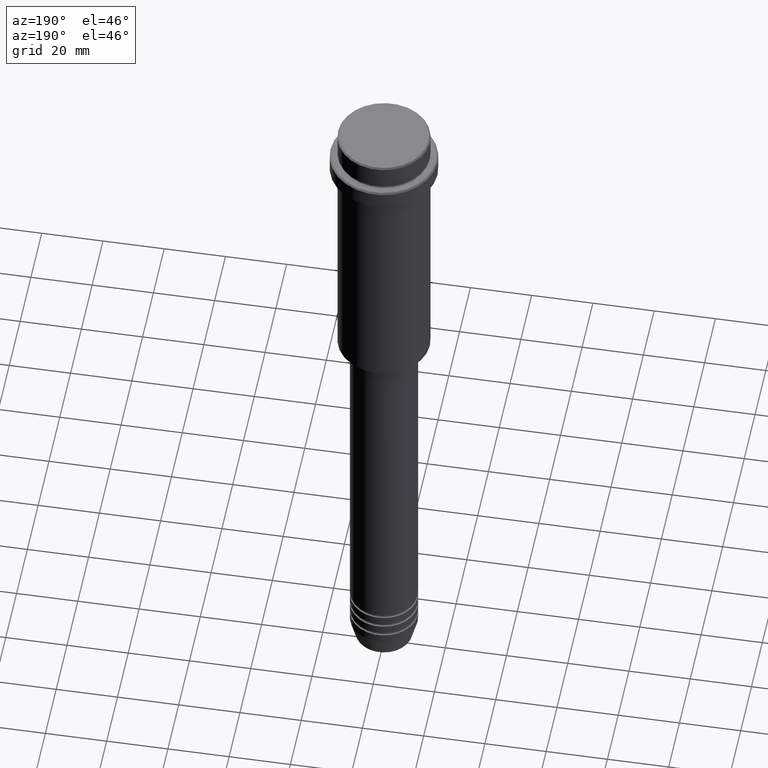
[diagram: clean part render]
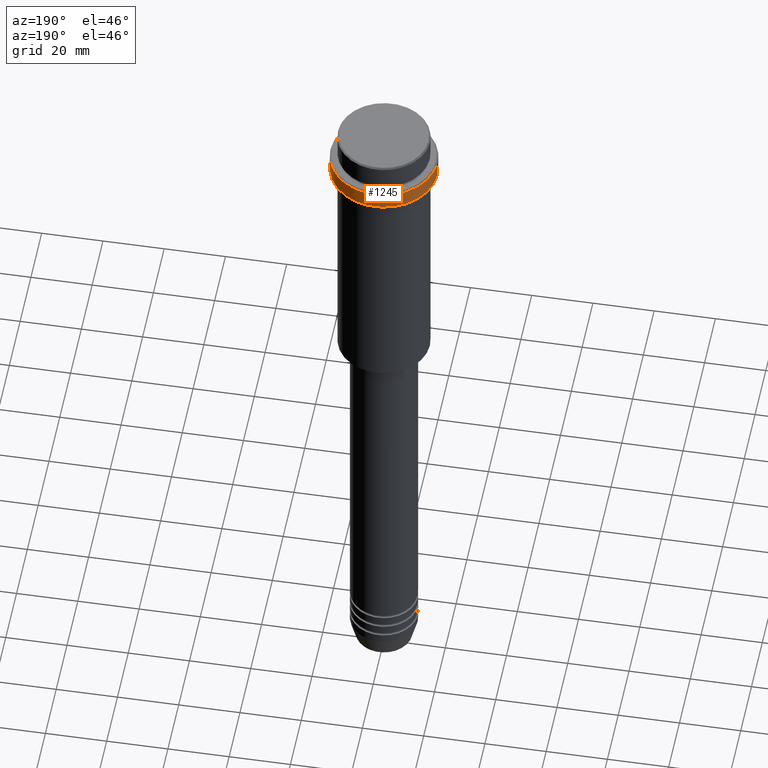
[diagram: same view with one face highlighted and labeled with its STEP entity id]
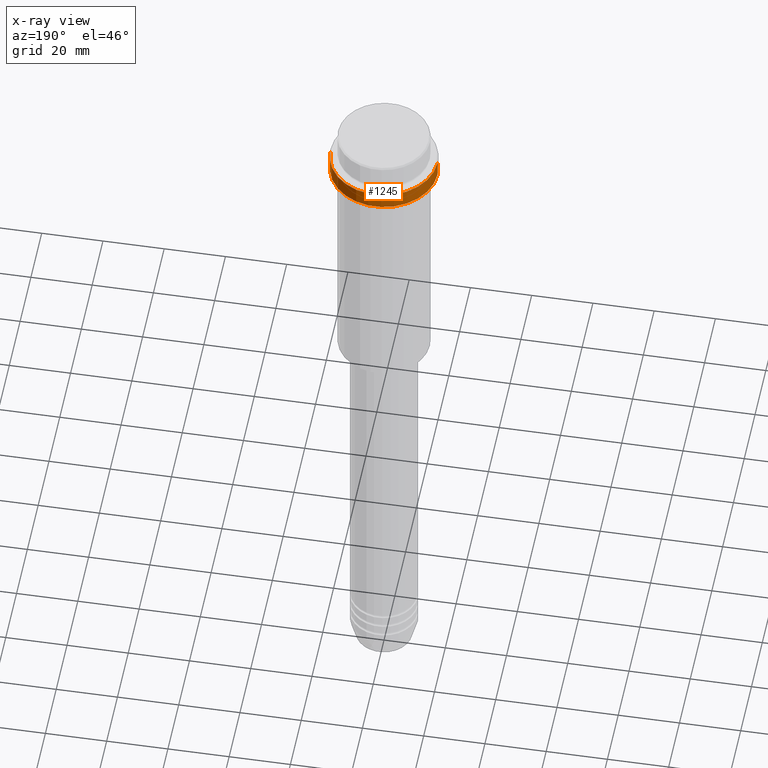
[diagram: x-ray of the same camera — body ghosted, the highlighted face saturated]
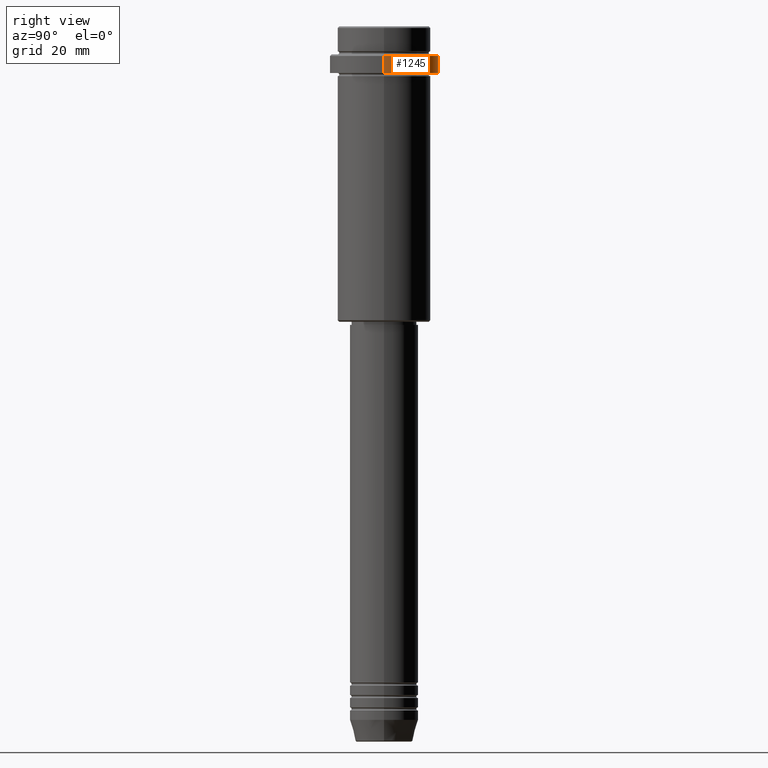
[diagram: same view with one face highlighted and labeled with its STEP entity id]
A machine part, auxiliary view. The second image highlights one B-rep face of the part: STEP entity #1245.
The next image is the same camera in x-ray: the body ghosted, the highlighted face saturated — about 0% of this face is hidden behind the body in this view.
A second angle (right view) of the same face is appended — the face is thin or edge-on in the first view.
In plain terms, the highlighted cylindrical surface (partial cylindrical patch) has radius 17.5 mm, axis along (-0, -0, 1).
Its self-contained STEP definition (entity closure, byte-faithful):
#1 = DIRECTION ( 'NONE',  ( -0.000000000000000000, -0.000000000000000000, 1.000000000000000000 ) ) ;
#16 = ORIENTED_EDGE ( 'NONE', *, *, #559, .T. ) ;
#60 = DIRECTION ( 'NONE',  ( 1.000000000000000000, 0.000000000000000000, 0.000000000000000000 ) ) ;
#68 = VERTEX_POINT ( 'NONE', #476 ) ;
#147 = DIRECTION ( 'NONE',  ( 1.000000000000000000, 0.000000000000000000, 0.000000000000000000 ) ) ;
#151 = VERTEX_POINT ( 'NONE', #524 ) ;
#265 = DIRECTION ( 'NONE',  ( -0.000000000000000000, -0.000000000000000000, 1.000000000000000000 ) ) ;
#269 = DIRECTION ( 'NONE',  ( -0.000000000000000000, -0.000000000000000000, 1.000000000000000000 ) ) ;
#281 = DIRECTION ( 'NONE',  ( -0.000000000000000000, -0.000000000000000000, 1.000000000000000000 ) ) ;
#315 = CIRCLE ( 'NONE', #1124, 17.50000000000000000 ) ;
#371 = CARTESIAN_POINT ( 'NONE',  ( 17.50000000000000000, 0.000000000000000000, -9.499999999999971578 ) ) ;
#375 = EDGE_CURVE ( 'NONE', #68, #988, #1259, .T. ) ;
#378 = CIRCLE ( 'NONE', #1184, 17.50000000000000000 ) ;
#394 = VERTEX_POINT ( 'NONE', #708 ) ;
#441 = VECTOR ( 'NONE', #265, 1000.000000000000000 ) ;
#476 = CARTESIAN_POINT ( 'NONE',  ( 17.50000000000000000, 0.000000000000000000, -15.00000000000000000 ) ) ;
#524 = CARTESIAN_POINT ( 'NONE',  ( -17.50000000000000000, 2.143131898507868248E-15, -9.499999999999971578 ) ) ;
#559 = EDGE_CURVE ( 'NONE', #68, #394, #378, .T. ) ;
#562 = CARTESIAN_POINT ( 'NONE',  ( 0.000000000000000000, 0.000000000000000000, -9.499999999999971578 ) ) ;
#700 = LINE ( 'NONE', #1357, #441 ) ;
#708 = CARTESIAN_POINT ( 'NONE',  ( -17.50000000000000000, 2.143131898507868248E-15, -15.00000000000000000 ) ) ;
#777 = CYLINDRICAL_SURFACE ( 'NONE', #997, 17.50000000000000000 ) ;
#804 = DIRECTION ( 'NONE',  ( 0.000000000000000000, 0.000000000000000000, -1.000000000000000000 ) ) ;
#911 = ORIENTED_EDGE ( 'NONE', *, *, #375, .F. ) ;
#985 = EDGE_CURVE ( 'NONE', #394, #151, #700, .T. ) ;
#987 = DIRECTION ( 'NONE',  ( 1.000000000000000000, 0.000000000000000000, 0.000000000000000000 ) ) ;
#988 = VERTEX_POINT ( 'NONE', #371 ) ;
#992 = EDGE_CURVE ( 'NONE', #151, #988, #315, .T. ) ;
#995 = CARTESIAN_POINT ( 'NONE',  ( 0.000000000000000000, 0.000000000000000000, 0.000000000000000000 ) ) ;
#997 = AXIS2_PLACEMENT_3D ( 'NONE', #995, #1, #987 ) ;
#1059 = CARTESIAN_POINT ( 'NONE',  ( 17.50000000000000000, 0.000000000000000000, 0.000000000000000000 ) ) ;
#1109 = ORIENTED_EDGE ( 'NONE', *, *, #992, .T. ) ;
#1124 = AXIS2_PLACEMENT_3D ( 'NONE', #562, #804, #147 ) ;
#1184 = AXIS2_PLACEMENT_3D ( 'NONE', #1274, #281, #60 ) ;
#1245 = ADVANCED_FACE ( 'NONE', ( #1326 ), #777, .T. ) ;
#1259 = LINE ( 'NONE', #1059, #1404 ) ;
#1274 = CARTESIAN_POINT ( 'NONE',  ( 0.000000000000000000, 0.000000000000000000, -15.00000000000000000 ) ) ;
#1299 = EDGE_LOOP ( 'NONE', ( #16, #1408, #1109, #911 ) ) ;
#1326 = FACE_OUTER_BOUND ( 'NONE', #1299, .T. ) ;
#1357 = CARTESIAN_POINT ( 'NONE',  ( -17.50000000000000000, 2.143131898507868248E-15, 0.000000000000000000 ) ) ;
#1404 = VECTOR ( 'NONE', #269, 1000.000000000000000 ) ;
#1408 = ORIENTED_EDGE ( 'NONE', *, *, #985, .T. ) ;